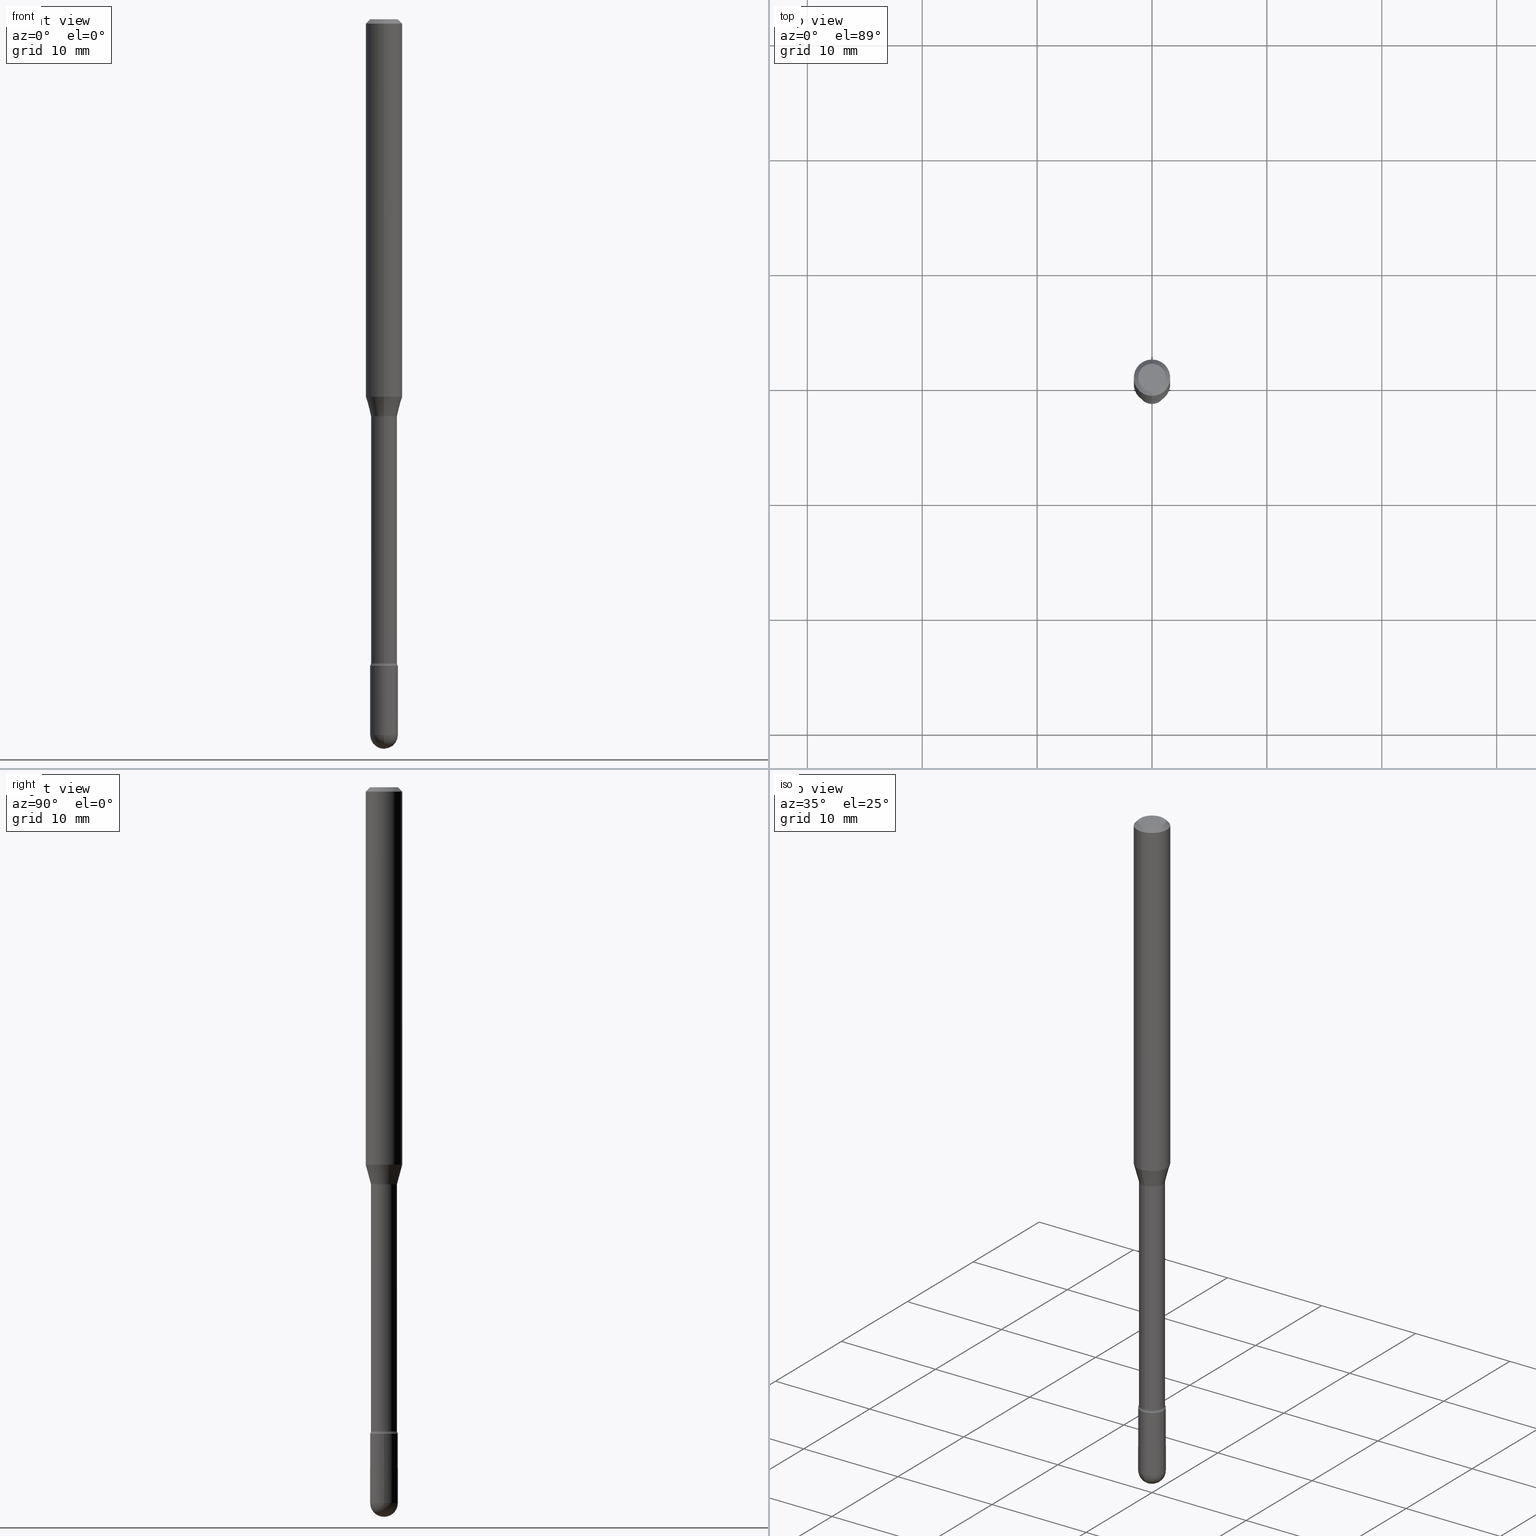
[diagram: canonical four-view strip — front | top / right | iso, engineering-drawing reading convention]
A machine part, canonical four-view strip (front | top / right | iso — engineering-drawing reading convention). The complete STEP part file that produces these views, byte-faithful:
ISO-10303-21;
HEADER;
FILE_DESCRIPTION (( 'STEP AP203' ),
    '1' );
FILE_NAME ('04588.STEP',
    '2024-04-09T22:11:20',
    ( '' ),
    ( '' ),
    'SwSTEP 2.0',
    'SolidWorks 2023',
    '' );
FILE_SCHEMA (( 'CONFIG_CONTROL_DESIGN' ));
ENDSEC;

DATA;
#1 = DIRECTION ( 'NONE',  ( 6.982962677686265922E-15, 1.000000000000000000, -5.751258934030028949E-15 ) ) ;
#2 = DIRECTION ( 'NONE',  ( 6.982962677686265922E-15, 1.000000000000000000, -3.483106191921935554E-15 ) ) ;
#3 = AXIS2_PLACEMENT_3D ( 'NONE', #271, #359, #448 ) ;
#4 = ADVANCED_FACE ( 'NONE', ( #294 ), #468, .T. ) ;
#5 = DIRECTION ( 'NONE',  ( -2.445461781788735863E-29, 3.491491398178595118E-15, 1.000000000000000000 ) ) ;
#6 = PRODUCT_RELATED_PRODUCT_CATEGORY ( 'detail', '', ( #372 ) ) ;
#7 = DIRECTION ( 'NONE',  ( -6.982962677686265922E-15, -1.000000000000000000, 3.491491398178595118E-15 ) ) ;
#8 = ORIENTED_EDGE ( 'NONE', *, *, #73, .F. ) ;
#9 = ORIENTED_EDGE ( 'NONE', *, *, #405, .F. ) ;
#10 = COORDINATED_UNIVERSAL_TIME_OFFSET ( 5, 0, .BEHIND. ) ;
#11 = DIRECTION ( 'NONE',  ( -2.445461781788736143E-29, 3.491491398178595118E-15, 1.000000000000000000 ) ) ;
#12 = CARTESIAN_POINT ( 'NONE',  ( 3.330657290502586691E-29, -4.755323254966016992E-15, -1.361974787463811287 ) ) ;
#13 = VERTEX_POINT ( 'NONE', #193 ) ;
#14 = AXIS2_PLACEMENT_3D ( 'NONE', #176, #435, #39 ) ;
#15 = APPROVAL_DATE_TIME ( #262, #351 ) ;
#16 = LOCAL_TIME ( 18, 11, 20.00000000000000000, #537 ) ;
#17 = EDGE_CURVE ( 'NONE', #306, #251, #174, .T. ) ;
#18 = DIRECTION ( 'NONE',  ( 2.445461781788735863E-29, -3.491491398178595118E-15, -1.000000000000000000 ) ) ;
#19 = DIRECTION ( 'NONE',  ( -2.445461781788735582E-29, 3.491491398178595118E-15, 1.000000000000000000 ) ) ;
#20 = CARTESIAN_POINT ( 'NONE',  ( 0.000000000000000000, 0.000000000000000000, 0.000000000000000000 ) ) ;
#21 = CARTESIAN_POINT ( 'NONE',  ( -3.316907271900436219E-16, -0.04750000000000775130, -2.214999999999999858 ) ) ;
#22 = FACE_OUTER_BOUND ( 'NONE', #491, .T. ) ;
#23 = DIRECTION ( 'NONE',  ( 1.000000000000000000, -6.982962677686266711E-15, 4.876176775795934672E-29 ) ) ;
#24 = ORIENTED_EDGE ( 'NONE', *, *, #188, .T. ) ;
#25 = EDGE_CURVE ( 'NONE', #30, #319, #225, .T. ) ;
#26 = VECTOR ( 'NONE', #120, 39.37007874015748143 ) ;
#27 = CC_DESIGN_SECURITY_CLASSIFICATION ( #219, ( #114 ) ) ;
#28 = CARTESIAN_POINT ( 'NONE',  ( 5.416713405700078055E-29, -7.733631165537568465E-15, -2.215000000000000302 ) ) ;
#29 = DIRECTION ( 'NONE',  ( -2.445461781788735863E-29, 3.491491398178595118E-15, 1.000000000000000000 ) ) ;
#30 = VERTEX_POINT ( 'NONE', #64 ) ;
#31 = CARTESIAN_POINT ( 'NONE',  ( 3.162918434258458957E-29, -4.515835245757259630E-15, -1.293382893084895846 ) ) ;
#32 = AXIS2_PLACEMENT_3D ( 'NONE', #332, #498, #119 ) ;
#33 = AXIS2_PLACEMENT_3D ( 'NONE', #312, #485, #49 ) ;
#34 = DIRECTION ( 'NONE',  ( -6.982962677686265922E-15, -1.000000000000000000, 6.118360568117040476E-15 ) ) ;
#35 = VERTEX_POINT ( 'NONE', #234 ) ;
#36 = ORGANIZATION ( 'UNSPECIFIED', 'UNSPECIFIED', '' ) ;
#37 = EDGE_CURVE ( 'NONE', #236, #245, #309, .T. ) ;
#38 = CARTESIAN_POINT ( 'NONE',  ( 2.023501778236297526E-45, -2.889136915043461319E-31, -8.274655425311145502E-17 ) ) ;
#39 = DIRECTION ( 'NONE',  ( 1.000000000000000000, -6.982962677686265922E-15, 4.876176775795935793E-29 ) ) ;
#40 = DIRECTION ( 'NONE',  ( -6.982962677686265922E-15, -1.000000000000000000, 3.491491398178596301E-15 ) ) ;
#41 = PLANE ( 'NONE',  #14 ) ;
#42 = APPROVAL_STATUS ( 'not_yet_approved' ) ;
#43 = ADVANCED_FACE ( 'NONE', ( #162 ), #336, .F. ) ;
#44 = ORIENTED_EDGE ( 'NONE', *, *, #52, .F. ) ;
#45 = CLOSED_SHELL ( 'NONE', ( #4, #285, #140, #439, #100 ) ) ;
#46 = AXIS2_PLACEMENT_3D ( 'NONE', #148, #531, #367 ) ;
#47 = FACE_OUTER_BOUND ( 'NONE', #243, .T. ) ;
#48 = AXIS2_PLACEMENT_3D ( 'NONE', #340, #170, #471 ) ;
#49 = DIRECTION ( 'NONE',  ( -6.982962677686265922E-15, -1.000000000000000000, 6.118360568117040476E-15 ) ) ;
#50 = FACE_OUTER_BOUND ( 'NONE', #386, .T. ) ;
#51 = FACE_OUTER_BOUND ( 'NONE', #328, .T. ) ;
#52 = EDGE_CURVE ( 'NONE', #89, #117, #377, .T. ) ;
#53 = AXIS2_PLACEMENT_3D ( 'NONE', #38, #446, #353 ) ;
#54 = CC_DESIGN_APPROVAL ( #351, ( #114 ) ) ;
#55 = PERSON_AND_ORGANIZATION_ROLE ( 'creator' ) ;
#56 = FACE_OUTER_BOUND ( 'NONE', #112, .T. ) ;
#57 = DIRECTION ( 'NONE',  ( 1.000000000000000000, -6.982962677686266711E-15, 4.876176775795934672E-29 ) ) ;
#58 = EDGE_LOOP ( 'NONE', ( #361, #539 ) ) ;
#59 = PERSON_AND_ORGANIZATION ( #133, #36 ) ;
#60 = FACE_OUTER_BOUND ( 'NONE', #198, .T. ) ;
#61 = DIRECTION ( 'NONE',  ( 1.000000000000000000, -7.105427357601001070E-15, 4.926315631733411836E-29 ) ) ;
#62 = EDGE_CURVE ( 'NONE', #464, #89, #183, .T. ) ;
#63 = FACE_OUTER_BOUND ( 'NONE', #190, .T. ) ;
#64 = CARTESIAN_POINT ( 'NONE',  ( -3.153583638081051864E-16, -0.04516111260566872676, -1.358092501787273143 ) ) ;
#65 = ORIENTED_EDGE ( 'NONE', *, *, #37, .T. ) ;
#66 = ORIENTED_EDGE ( 'NONE', *, *, #257, .T. ) ;
#67 = VECTOR ( 'NONE', #11, 39.37007874015748143 ) ;
#68 = AXIS2_PLACEMENT_3D ( 'NONE', #432, #129, #298 ) ;
#69 = CARTESIAN_POINT ( 'NONE',  ( 5.997512247169047773E-29, -8.562857983512815004E-15, -2.452500000000000124 ) ) ;
#70 = CYLINDRICAL_SURFACE ( 'NONE', #300, 0.04465000000000004382 ) ;
#71 = DIRECTION ( 'NONE',  ( -6.982962677686265922E-15, -1.000000000000000000, 6.118360568117050731E-15 ) ) ;
#72 = CARTESIAN_POINT ( 'NONE',  ( 3.668192672683123885E-31, -5.237237097267922061E-17, -0.01500000000000008271 ) ) ;
#73 = EDGE_CURVE ( 'NONE', #108, #236, #82, .T. ) ;
#74 = CARTESIAN_POINT ( 'NONE',  ( 0.000000000000000000, 0.000000000000000000, 0.000000000000000000 ) ) ;
#75 = AXIS2_PLACEMENT_3D ( 'NONE', #12, #374, #71 ) ;
#76 = CIRCLE ( 'NONE', #481, 0.04749999999999998668 ) ;
#77 = AXIS2_PLACEMENT_3D ( 'NONE', #250, #437, #40 ) ;
#78 =( NAMED_UNIT ( * ) PLANE_ANGLE_UNIT ( ) SI_UNIT ( $, .RADIAN. ) );
#79 = APPLICATION_PROTOCOL_DEFINITION ( 'international standard', 'config_control_design', 1994, #238 ) ;
#80 = CARTESIAN_POINT ( 'NONE',  ( 0.000000000000000000, 0.000000000000000000, 0.000000000000000000 ) ) ;
#81 = EDGE_CURVE ( 'NONE', #350, #154, #396, .T. ) ;
#82 = LINE ( 'NONE', #436, #316 ) ;
#83 = DIRECTION ( 'NONE',  ( -2.445461781788735863E-29, 3.491491398178595118E-15, 1.000000000000000000 ) ) ;
#84 = ORIENTED_EDGE ( 'NONE', *, *, #495, .T. ) ;
#85 = CIRCLE ( 'NONE', #356, 0.06250000000000000000 ) ;
#86 = AXIS2_PLACEMENT_3D ( 'NONE', #181, #99, #102 ) ;
#87 = CARTESIAN_POINT ( 'NONE',  ( 3.330666857553381436E-29, -4.755309554404755969E-15, -1.361974787463811287 ) ) ;
#88 = APPROVAL_DATE_TIME ( #469, #222 ) ;
#89 = VERTEX_POINT ( 'NONE', #466 ) ;
#90 = EDGE_CURVE ( 'NONE', #338, #306, #383, .T. ) ;
#91 = ORIENTED_EDGE ( 'NONE', *, *, #344, .F. ) ;
#92 = ORIENTED_EDGE ( 'NONE', *, *, #81, .F. ) ;
#93 = ORIENTED_EDGE ( 'NONE', *, *, #470, .F. ) ;
#94 = FACE_OUTER_BOUND ( 'NONE', #308, .T. ) ;
#95 = ORIENTED_EDGE ( 'NONE', *, *, #132, .F. ) ;
#96 = VECTOR ( 'NONE', #529, 39.37007874015748143 ) ;
#97 = DIRECTION ( 'NONE',  ( 1.000000000000000000, -6.982962677686265922E-15, 4.883557194083112340E-29 ) ) ;
#98 = CIRCLE ( 'NONE', #237, 0.04465000000000007851 ) ;
#99 = DIRECTION ( 'NONE',  ( -2.445468806185136597E-29, 3.491481338843145583E-15, 1.000000000000000000 ) ) ;
#100 = ADVANCED_FACE ( 'NONE', ( #60 ), #408, .T. ) ;
#101 = CARTESIAN_POINT ( 'NONE',  ( -4.364351673553916201E-16, -0.06250000000000000000, 6.962916112774082088E-16 ) ) ;
#102 = DIRECTION ( 'NONE',  ( 1.000000000000000000, -6.982962677686280910E-15, 0.000000000000000000 ) ) ;
#103 = CIRCLE ( 'NONE', #226, 0.01500000000000001853 ) ;
#104 = EDGE_LOOP ( 'NONE', ( #150, #369, #501, #477 ) ) ;
#105 = CARTESIAN_POINT ( 'NONE',  ( 4.238387418809543025E-16, 0.05964999999999239660, -2.206203551853163081 ) ) ;
#106 = EDGE_LOOP ( 'NONE', ( #430, #249, #516, #280 ) ) ;
#107 = CARTESIAN_POINT ( 'NONE',  ( -1.169113584055446105E-44, 1.669184350826100908E-30, 4.780733988912460139E-16 ) ) ;
#108 = VERTEX_POINT ( 'NONE', #290 ) ;
#109 = DIRECTION ( 'NONE',  ( 1.000000000000000000, -6.982962677686280910E-15, 0.000000000000000000 ) ) ;
#110 = SPHERICAL_SURFACE ( 'NONE', #343, 0.04749999999999998668 ) ;
#111 = CARTESIAN_POINT ( 'NONE',  ( 3.668192672683123885E-31, -5.237237097267922061E-17, -0.01500000000000008271 ) ) ;
#112 = EDGE_LOOP ( 'NONE', ( #93, #240, #515, #523 ) ) ;
#113 = CIRCLE ( 'NONE', #472, 0.01500000000000001853 ) ;
#114 = PRODUCT_DEFINITION_FORMATION_WITH_SPECIFIED_SOURCE ( 'ANY', '', #372, .NOT_KNOWN. ) ;
#115 = EDGE_CURVE ( 'NONE', #464, #134, #381, .T. ) ;
#116 = DIRECTION ( 'NONE',  ( -6.982962677686265922E-15, -1.000000000000000000, 3.491491398178595118E-15 ) ) ;
#117 = VERTEX_POINT ( 'NONE', #431 ) ;
#118 = LINE ( 'NONE', #385, #167 ) ;
#119 = DIRECTION ( 'NONE',  ( 6.982962677686265922E-15, 1.000000000000000000, -3.491491398178595118E-15 ) ) ;
#120 = DIRECTION ( 'NONE',  ( -2.445468806185136877E-29, 3.491481338843145188E-15, 1.000000000000000000 ) ) ;
#121 = CARTESIAN_POINT ( 'NONE',  ( 3.321163309254627644E-29, -4.741768287921113327E-15, -1.358092501787273365 ) ) ;
#122 = DIRECTION ( 'NONE',  ( -2.445468806185136597E-29, 3.491481338843145583E-15, 1.000000000000000000 ) ) ;
#123 = DIRECTION ( 'NONE',  ( -2.445468806185136597E-29, 3.491481338843145583E-15, 1.000000000000000000 ) ) ;
#124 = VECTOR ( 'NONE', #315, 39.37007874015748854 ) ;
#125 = MANIFOLD_SOLID_BREP ( 'Body-Move/Copy2[2]', #504 ) ;
#126 =( LENGTH_UNIT ( ) NAMED_UNIT ( * ) SI_UNIT ( $, .METRE. ) );
#127 = EDGE_CURVE ( 'NONE', #13, #214, #85, .T. ) ;
#128 = FACE_OUTER_BOUND ( 'NONE', #536, .T. ) ;
#129 = DIRECTION ( 'NONE',  ( -2.445461781788735863E-29, 3.491491398178595118E-15, 1.000000000000000000 ) ) ;
#130 = CIRCLE ( 'NONE', #287, 0.06250000000000000000 ) ;
#131 = DIRECTION ( 'NONE',  ( -2.445461781788735863E-29, 3.491491398178595118E-15, 1.000000000000000000 ) ) ;
#132 = EDGE_CURVE ( 'NONE', #108, #479, #317, .T. ) ;
#133 = PERSON ( 'UNSPECIFIED', 'UNSPECIFIED', 'UNSPECIFIED', ('UNSPECIFIED'), ('UNSPECIFIED'), ('UNSPECIFIED') ) ;
#134 = VERTEX_POINT ( 'NONE', #173 ) ;
#135 = DIRECTION ( 'NONE',  ( -6.982962677686266711E-15, -1.000000000000000000, 6.049115790211160649E-15 ) ) ;
#136 = CARTESIAN_POINT ( 'NONE',  ( 5.997512247169047773E-29, -8.562857983512815004E-15, -2.452500000000000124 ) ) ;
#137 = CIRCLE ( 'NONE', #86, 0.04750000000000000749 ) ;
#138 = CARTESIAN_POINT ( 'NONE',  ( 3.824891074290559066E-16, 0.04516111260565924823, -1.358092501787273587 ) ) ;
#139 = APPROVAL_PERSON_ORGANIZATION ( #207, #222, #168 ) ;
#140 = ADVANCED_FACE ( 'NONE', ( #258 ), #41, .T. ) ;
#141 = DIRECTION ( 'NONE',  ( -6.982962677686265922E-15, -1.000000000000000000, 3.483106191921935554E-15 ) ) ;
#142 = PERSON_AND_ORGANIZATION ( #133, #36 ) ;
#143 = CC_DESIGN_PERSON_AND_ORGANIZATION_ASSIGNMENT ( #177, #313, ( #219 ) ) ;
#144 = CARTESIAN_POINT ( 'NONE',  ( -3.117892835586584493E-16, -0.04465000000000475533, -1.361974787463811065 ) ) ;
#145 = DATE_AND_TIME ( #442, #379 ) ;
#146 = DIRECTION ( 'NONE',  ( -2.445468806185136597E-29, 3.491481338843145583E-15, 1.000000000000000000 ) ) ;
#147 = EDGE_CURVE ( 'NONE', #30, #251, #103, .T. ) ;
#148 = CARTESIAN_POINT ( 'NONE',  ( 5.997512247169047773E-29, -8.562857983512815004E-15, -2.452500000000000124 ) ) ;
#149 = AXIS2_PLACEMENT_3D ( 'NONE', #348, #5, #566 ) ;
#150 = ORIENTED_EDGE ( 'NONE', *, *, #257, .F. ) ;
#151 = DIRECTION ( 'NONE',  ( 1.000000000000000000, -6.982962677686280910E-15, 0.000000000000000000 ) ) ;
#152 = FACE_OUTER_BOUND ( 'NONE', #104, .T. ) ;
#153 = CARTESIAN_POINT ( 'NONE',  ( 5.416697846662049906E-29, -7.733653446965590441E-15, -2.215000000000000302 ) ) ;
#154 = VERTEX_POINT ( 'NONE', #21 ) ;
#155 = DIRECTION ( 'NONE',  ( -4.851104656540964275E-15, -0.7071067811865500152, -0.7071067811865450192 ) ) ;
#156 = ORIENTED_EDGE ( 'NONE', *, *, #465, .F. ) ;
#157 = ORIENTED_EDGE ( 'NONE', *, *, #17, .T. ) ;
#158 = AXIS2_PLACEMENT_3D ( 'NONE', #136, #307, #1 ) ;
#159 = AXIS2_PLACEMENT_3D ( 'NONE', #28, #123, #506 ) ;
#160 = CIRCLE ( 'NONE', #68, 0.04749999999999999362 ) ;
#161 = EDGE_CURVE ( 'NONE', #30, #214, #118, .T. ) ;
#162 = FACE_OUTER_BOUND ( 'NONE', #58, .T. ) ;
#163 = FACE_OUTER_BOUND ( 'NONE', #552, .T. ) ;
#164 = DIRECTION ( 'NONE',  ( -2.445461781788735863E-29, 3.491491398178595118E-15, 1.000000000000000000 ) ) ;
#165 = EDGE_CURVE ( 'NONE', #13, #236, #273, .T. ) ;
#166 = DIRECTION ( 'NONE',  ( -2.445461781788736143E-29, 3.491491398178595118E-15, 1.000000000000000000 ) ) ;
#167 = VECTOR ( 'NONE', #223, 39.37007874015748854 ) ;
#168 = APPROVAL_ROLE ( '' ) ;
#169 = ORIENTED_EDGE ( 'NONE', *, *, #204, .T. ) ;
#170 = DIRECTION ( 'NONE',  ( -2.445468806185136597E-29, 3.491481338843145583E-15, 1.000000000000000000 ) ) ;
#171 = DIRECTION ( 'NONE',  ( -6.982962677686265922E-15, -1.000000000000000000, 4.370956789862821150E-15 ) ) ;
#172 = EDGE_CURVE ( 'NONE', #117, #276, #137, .T. ) ;
#173 = CARTESIAN_POINT ( 'NONE',  ( -0.04749999999999999362, -7.810736775039144241E-15, -2.215000000000000302 ) ) ;
#174 = CIRCLE ( 'NONE', #75, 0.04465000000000000219 ) ;
#175 = CIRCLE ( 'NONE', #33, 0.04465000000000007851 ) ;
#176 = CARTESIAN_POINT ( 'NONE',  ( 5.416713405700078055E-29, -7.733631165537568465E-15, -2.215000000000000302 ) ) ;
#177 = PERSON_AND_ORGANIZATION ( #133, #36 ) ;
#178 = ORIENTED_EDGE ( 'NONE', *, *, #81, .T. ) ;
#179 = SPHERICAL_SURFACE ( 'NONE', #158, 0.04749999999999998668 ) ;
#180 = VERTEX_POINT ( 'NONE', #275 ) ;
#181 = CARTESIAN_POINT ( 'NONE',  ( 5.997512247169047773E-29, -8.562857983512815004E-15, -2.452500000000000124 ) ) ;
#182 = DIRECTION ( 'NONE',  ( -2.445461781788735863E-29, 3.491491398178595118E-15, 1.000000000000000000 ) ) ;
#183 = CIRCLE ( 'NONE', #216, 0.04750000000000000749 ) ;
#184 = VECTOR ( 'NONE', #155, 39.37007874015748143 ) ;
#185 = DIRECTION ( 'NONE',  ( 6.982962677686265133E-15, 1.000000000000000000, 0.000000000000000000 ) ) ;
#186 = DIRECTION ( 'NONE',  ( 2.445461781788735863E-29, -3.491491398178595118E-15, -1.000000000000000000 ) ) ;
#187 = APPROVAL_DATE_TIME ( #145, #497 ) ;
#188 = EDGE_CURVE ( 'NONE', #214, #245, #478, .T. ) ;
#189 = CARTESIAN_POINT ( 'NONE',  ( -4.287811248607203282E-16, -0.06250000000000005551, -0.01499999999999986587 ) ) ;
#190 = EDGE_LOOP ( 'NONE', ( #9, #429, #460, #565 ) ) ;
#191 = ORIENTED_EDGE ( 'NONE', *, *, #547, .T. ) ;
#192 = CARTESIAN_POINT ( 'NONE',  ( 3.330657290502586691E-29, -4.755323254966016992E-15, -1.361974787463811287 ) ) ;
#193 = CARTESIAN_POINT ( 'NONE',  ( 4.440892098500943678E-16, 0.06249999999999551747, -1.293382893084896068 ) ) ;
#194 = CIRCLE ( 'NONE', #389, 0.04749999999999999362 ) ;
#195 = ORIENTED_EDGE ( 'NONE', *, *, #366, .F. ) ;
#196 = CC_DESIGN_APPROVAL ( #222, ( #519 ) ) ;
#197 = DIRECTION ( 'NONE',  ( -2.445461781788735863E-29, 3.491491398178595118E-15, 1.000000000000000000 ) ) ;
#198 = EDGE_LOOP ( 'NONE', ( #358, #542, #421, #291, #418 ) ) ;
#199 = CARTESIAN_POINT ( 'NONE',  ( 0.04750000000000000749, -3.316907271900977082E-16, 2.316183968503069432E-30 ) ) ;
#200 = EDGE_CURVE ( 'NONE', #245, #236, #505, .T. ) ;
#201 = FACE_OUTER_BOUND ( 'NONE', #411, .T. ) ;
#202 = LOCAL_TIME ( 18, 11, 20.00000000000000000, #475 ) ;
#203 = CYLINDRICAL_SURFACE ( 'NONE', #513, 0.06250000000000000000 ) ;
#204 = EDGE_CURVE ( 'NONE', #214, #13, #130, .T. ) ;
#205 = DIRECTION ( 'NONE',  ( 0.000000000000000000, 0.000000000000000000, 1.000000000000000000 ) ) ;
#206 = ORIENTED_EDGE ( 'NONE', *, *, #366, .T. ) ;
#207 = PERSON_AND_ORGANIZATION ( #133, #36 ) ;
#208 = ORIENTED_EDGE ( 'NONE', *, *, #172, .T. ) ;
#209 = AXIS2_PLACEMENT_3D ( 'NONE', #20, #494, #23 ) ;
#210 = FACE_OUTER_BOUND ( 'NONE', #260, .T. ) ;
#211 = ORIENTED_EDGE ( 'NONE', *, *, #470, .T. ) ;
#212 = LENGTH_MEASURE_WITH_UNIT ( LENGTH_MEASURE( 0.02539999999999999897 ), #126 );
#213 = COORDINATED_UNIVERSAL_TIME_OFFSET ( 5, 0, .BEHIND. ) ;
#214 = VERTEX_POINT ( 'NONE', #224 ) ;
#215 = FACE_OUTER_BOUND ( 'NONE', #106, .T. ) ;
#216 = AXIS2_PLACEMENT_3D ( 'NONE', #69, #146, #151 ) ;
#217 = AXIS2_PLACEMENT_3D ( 'NONE', #72, #18, #541 ) ;
#218 = CARTESIAN_POINT ( 'NONE',  ( 5.416697846662049906E-29, -7.733653446965590441E-15, -2.215000000000000302 ) ) ;
#219 = SECURITY_CLASSIFICATION ( '', '', #559 ) ;
#220 = ORIENTED_EDGE ( 'NONE', *, *, #90, .T. ) ;
#221 = DIRECTION ( 'NONE',  ( -2.445461781788735863E-29, 3.491491398178595118E-15, 1.000000000000000000 ) ) ;
#222 = APPROVAL ( #384, 'UNSPECIFIED' ) ;
#223 = DIRECTION ( 'NONE',  ( -1.807323732225322645E-15, -0.2588190451025170757, 0.9659258262890693114 ) ) ;
#224 = CARTESIAN_POINT ( 'NONE',  ( -4.364351673553597698E-16, -0.06250000000000448253, -1.293382893084895402 ) ) ;
#225 = CIRCLE ( 'NONE', #299, 0.04516111260566398750 ) ;
#226 = AXIS2_PLACEMENT_3D ( 'NONE', #341, #509, #241 ) ;
#227 = CARTESIAN_POINT ( 'NONE',  ( 3.668192672683123885E-31, -5.237237097267922061E-17, -0.01500000000000008271 ) ) ;
#228 = ADVANCED_FACE ( 'NONE', ( #47 ), #544, .T. ) ;
#229 = DIRECTION ( 'NONE',  ( -6.982962677686265922E-15, -1.000000000000000000, 3.491491398178596301E-15 ) ) ;
#230 = EDGE_LOOP ( 'NONE', ( #253, #375, #24, #254 ) ) ;
#231 = DATE_AND_TIME ( #370, #16 ) ;
#232 = DIRECTION ( 'NONE',  ( 7.105427357601001859E-15, 1.000000000000000000, 0.000000000000000000 ) ) ;
#233 = DIRECTION ( 'NONE',  ( -6.982962677686266711E-15, -1.000000000000000000, 6.049115790211160649E-15 ) ) ;
#234 = CARTESIAN_POINT ( 'NONE',  ( 6.115703035399643170E-29, -8.725794810959889951E-15, -2.500000000000000000 ) ) ;
#235 = AXIS2_PLACEMENT_3D ( 'NONE', #493, #330, #116 ) ;
#236 = VERTEX_POINT ( 'NONE', #451 ) ;
#237 = AXIS2_PLACEMENT_3D ( 'NONE', #256, #164, #34 ) ;
#238 = APPLICATION_CONTEXT ( 'configuration controlled 3d designs of mechanical parts and assemblies' ) ;
#239 = ADVANCED_FACE ( 'NONE', ( #94 ), #416, .T. ) ;
#240 = ORIENTED_EDGE ( 'NONE', *, *, #25, .F. ) ;
#241 = DIRECTION ( 'NONE',  ( -6.982962677686267499E-15, -1.000000000000000000, 0.000000000000000000 ) ) ;
#242 = CARTESIAN_POINT ( 'NONE',  ( -3.117892835586383826E-16, -0.04465000000000778069, -2.206203551853162637 ) ) ;
#243 = EDGE_LOOP ( 'NONE', ( #264, #66, #265, #342 ) ) ;
#244 = DIRECTION ( 'NONE',  ( -6.982962677686266711E-15, -1.000000000000000000, 5.751258934030028949E-15 ) ) ;
#245 = VERTEX_POINT ( 'NONE', #272 ) ;
#246 = AXIS2_PLACEMENT_3D ( 'NONE', #293, #419, #7 ) ;
#247 = ADVANCED_FACE ( 'NONE', ( #51 ), #397, .F. ) ;
#248 = CARTESIAN_POINT ( 'NONE',  ( 5.997512247169047773E-29, -8.562857983512815004E-15, -2.452500000000000124 ) ) ;
#249 = ORIENTED_EDGE ( 'NONE', *, *, #465, .T. ) ;
#250 = CARTESIAN_POINT ( 'NONE',  ( -1.169113584055446105E-44, 1.669184350826100908E-30, 4.780733988912460139E-16 ) ) ;
#251 = VERTEX_POINT ( 'NONE', #144 ) ;
#252 = CYLINDRICAL_SURFACE ( 'NONE', #77, 0.04465000000000004382 ) ;
#253 = ORIENTED_EDGE ( 'NONE', *, *, #165, .F. ) ;
#254 = ORIENTED_EDGE ( 'NONE', *, *, #37, .F. ) ;
#255 = CIRCLE ( 'NONE', #274, 0.04465000000000000219 ) ;
#256 = CARTESIAN_POINT ( 'NONE',  ( 5.395186468903473555E-29, -7.702940723926383539E-15, -2.206203551853163081 ) ) ;
#257 = EDGE_CURVE ( 'NONE', #319, #13, #563, .T. ) ;
#258 = FACE_OUTER_BOUND ( 'NONE', #528, .T. ) ;
#259 = PERSON_AND_ORGANIZATION ( #133, #36 ) ;
#260 = EDGE_LOOP ( 'NONE', ( #364, #220, #281, #195 ) ) ;
#261 = ORIENTED_EDGE ( 'NONE', *, *, #323, .T. ) ;
#262 = DATE_AND_TIME ( #526, #507 ) ;
#263 = ORIENTED_EDGE ( 'NONE', *, *, #172, .F. ) ;
#264 = ORIENTED_EDGE ( 'NONE', *, *, #25, .T. ) ;
#265 = ORIENTED_EDGE ( 'NONE', *, *, #204, .F. ) ;
#266 = DIRECTION ( 'NONE',  ( -2.445461781788736143E-29, 3.491491398178595118E-15, 1.000000000000000000 ) ) ;
#267 = EDGE_CURVE ( 'NONE', #319, #30, #463, .T. ) ;
#268 = CONICAL_SURFACE ( 'NONE', #217, 0.06250000000000000000, 0.7853981633974483900 ) ;
#269 = APPROVAL_PERSON_ORGANIZATION ( #530, #497, #514 ) ;
#270 = ORIENTED_EDGE ( 'NONE', *, *, #455, .T. ) ;
#271 = CARTESIAN_POINT ( 'NONE',  ( 5.416713405700078055E-29, -7.733631165537568465E-15, -2.215000000000000302 ) ) ;
#272 = CARTESIAN_POINT ( 'NONE',  ( -4.364351673553912750E-16, -0.06250000000000005551, -0.01499999999999986587 ) ) ;
#273 = LINE ( 'NONE', #487, #388 ) ;
#274 = AXIS2_PLACEMENT_3D ( 'NONE', #192, #321, #371 ) ;
#275 = CARTESIAN_POINT ( 'NONE',  ( 0.04749999999999999362, -8.065321892727665188E-15, -2.215000000000000302 ) ) ;
#276 = VERTEX_POINT ( 'NONE', #352 ) ;
#277 = DATE_TIME_ROLE ( 'classification_date' ) ;
#278 = LINE ( 'NONE', #189, #184 ) ;
#279 = DIRECTION ( 'NONE',  ( -2.445468806185136597E-29, 3.491481338843145583E-15, 1.000000000000000000 ) ) ;
#280 = ORIENTED_EDGE ( 'NONE', *, *, #495, .F. ) ;
#281 = ORIENTED_EDGE ( 'NONE', *, *, #413, .F. ) ;
#282 = DIRECTION ( 'NONE',  ( -2.445461781788735863E-29, 3.491491398178595118E-15, 1.000000000000000000 ) ) ;
#283 = DIMENSIONAL_EXPONENTS ( 1.000000000000000000, 0.000000000000000000, 0.000000000000000000, 0.000000000000000000, 0.000000000000000000, 0.000000000000000000, 0.000000000000000000 ) ;
#284 = ORIENTED_EDGE ( 'NONE', *, *, #90, .F. ) ;
#285 = ADVANCED_FACE ( 'NONE', ( #215 ), #179, .T. ) ;
#286 = CARTESIAN_POINT ( 'NONE',  ( 3.321163309254627644E-29, -4.741768287921113327E-15, -1.358092501787273365 ) ) ;
#287 = AXIS2_PLACEMENT_3D ( 'NONE', #409, #304, #354 ) ;
#288 = AXIS2_PLACEMENT_3D ( 'NONE', #74, #205, #428 ) ;
#289 = PLANE ( 'NONE',  #452 ) ;
#290 = CARTESIAN_POINT ( 'NONE',  ( 3.840629472727447874E-16, 0.04749999999999999362, -2.485923956665947374E-16 ) ) ;
#291 = ORIENTED_EDGE ( 'NONE', *, *, #427, .T. ) ;
#292 = PRODUCT_DEFINITION_SHAPE ( 'NONE', 'NONE',  #519 ) ;
#293 = CARTESIAN_POINT ( 'NONE',  ( 5.395201966151762718E-29, -7.702918530984785172E-15, -2.206203551853163081 ) ) ;
#294 = FACE_OUTER_BOUND ( 'NONE', #557, .T. ) ;
#295 = DIRECTION ( 'NONE',  ( -6.982962677686265922E-15, -1.000000000000000000, 3.483106191921935554E-15 ) ) ;
#296 = CALENDAR_DATE ( 2024, 9, 4 ) ;
#297 = DIRECTION ( 'NONE',  ( -2.445468806185136877E-29, 3.491481338843145188E-15, 1.000000000000000000 ) ) ;
#298 = DIRECTION ( 'NONE',  ( -6.982962677686266711E-15, -1.000000000000000000, 3.491491398178595512E-15 ) ) ;
#299 = AXIS2_PLACEMENT_3D ( 'NONE', #121, #368, #322 ) ;
#300 = AXIS2_PLACEMENT_3D ( 'NONE', #410, #534, #229 ) ;
#301 = CIRCLE ( 'NONE', #159, 0.04749999999999999362 ) ;
#302 = PERSON_AND_ORGANIZATION ( #133, #36 ) ;
#303 = ORIENTED_EDGE ( 'NONE', *, *, #527, .F. ) ;
#304 = DIRECTION ( 'NONE',  ( -2.445461781788735863E-29, 3.491491398178595118E-15, 1.000000000000000000 ) ) ;
#305 = MANIFOLD_SOLID_BREP ( 'Body-Move/Copy2[1]', #45 ) ;
#306 = VERTEX_POINT ( 'NONE', #404 ) ;
#307 = DIRECTION ( 'NONE',  ( -1.000000000000000000, 6.982962677686265922E-15, -4.883557194083112340E-29 ) ) ;
#308 = EDGE_LOOP ( 'NONE', ( #518, #95, #561, #65 ) ) ;
#309 = CIRCLE ( 'NONE', #488, 0.06250000000000000000 ) ;
#310 = CONICAL_SURFACE ( 'NONE', #335, 0.04516111260566398750, 0.2617993877991491303 ) ;
#311 = DIRECTION ( 'NONE',  ( -6.982962677686267499E-15, -1.000000000000000000, 0.000000000000000000 ) ) ;
#312 = CARTESIAN_POINT ( 'NONE',  ( 5.395186468903473555E-29, -7.702940723926383539E-15, -2.206203551853163081 ) ) ;
#313 = PERSON_AND_ORGANIZATION_ROLE ( 'classification_officer' ) ;
#314 = APPLICATION_CONTEXT ( 'configuration controlled 3d designs of mechanical parts and assemblies' ) ;
#315 = DIRECTION ( 'NONE',  ( 1.839019923739592427E-15, 0.2588190451025238481, 0.9659258262890675351 ) ) ;
#316 = VECTOR ( 'NONE', #511, 39.37007874015748143 ) ;
#317 = CIRCLE ( 'NONE', #53, 0.04749999999999999362 ) ;
#318 = LINE ( 'NONE', #420, #67 ) ;
#319 = VERTEX_POINT ( 'NONE', #138 ) ;
#320 = APPROVAL_STATUS ( 'not_yet_approved' ) ;
#321 = DIRECTION ( 'NONE',  ( -2.445461781788735863E-29, 3.491491398178595118E-15, 1.000000000000000000 ) ) ;
#322 = DIRECTION ( 'NONE',  ( -6.982962677686266711E-15, -1.000000000000000000, 6.049115790211160649E-15 ) ) ;
#323 = EDGE_CURVE ( 'NONE', #35, #276, #76, .T. ) ;
#324 = DIRECTION ( 'NONE',  ( -2.445461781788735863E-29, 3.491491398178595118E-15, 1.000000000000000000 ) ) ;
#325 = CC_DESIGN_PERSON_AND_ORGANIZATION_ASSIGNMENT ( #59, #55, ( #114 ) ) ;
#326 = FACE_OUTER_BOUND ( 'NONE', #346, .T. ) ;
#327 = CIRCLE ( 'NONE', #3, 0.04749999999999999362 ) ;
#328 = EDGE_LOOP ( 'NONE', ( #535, #555, #178, #91 ) ) ;
#329 = EDGE_CURVE ( 'NONE', #180, #134, #327, .T. ) ;
#330 = DIRECTION ( 'NONE',  ( -2.445461781788735863E-29, 3.491491398178595118E-15, 1.000000000000000000 ) ) ;
#331 = DIRECTION ( 'NONE',  ( -6.982962677686265922E-15, -1.000000000000000000, 3.491491398178594723E-15 ) ) ;
#332 = CARTESIAN_POINT ( 'NONE',  ( 3.316907271900976096E-16, 0.04749999999999999362, 3.181758090558397858E-17 ) ) ;
#333 = PERSON_AND_ORGANIZATION ( #133, #36 ) ;
#334 = VECTOR ( 'NONE', #297, 39.37007874015748143 ) ;
#335 = AXIS2_PLACEMENT_3D ( 'NONE', #286, #282, #233 ) ;
#336 = PLANE ( 'NONE',  #32 ) ;
#337 =( NAMED_UNIT ( * ) SI_UNIT ( $, .STERADIAN. ) SOLID_ANGLE_UNIT ( ) );
#338 = VERTEX_POINT ( 'NONE', #524 ) ;
#339 = EDGE_CURVE ( 'NONE', #426, #338, #175, .T. ) ;
#340 = CARTESIAN_POINT ( 'NONE',  ( 5.997512247169047773E-29, -8.562857983512815004E-15, -2.452500000000000124 ) ) ;
#341 = CARTESIAN_POINT ( 'NONE',  ( -4.165337237239525091E-16, -0.05965000000000476171, -1.361974787463811065 ) ) ;
#342 = ORIENTED_EDGE ( 'NONE', *, *, #161, .F. ) ;
#343 = AXIS2_PLACEMENT_3D ( 'NONE', #373, #417, #462 ) ;
#344 = EDGE_CURVE ( 'NONE', #426, #154, #113, .T. ) ;
#345 = PERSON_AND_ORGANIZATION_ROLE ( 'creator' ) ;
#346 = EDGE_LOOP ( 'NONE', ( #303, #270, #394, #8 ) ) ;
#347 = ORIENTED_EDGE ( 'NONE', *, *, #165, .T. ) ;
#348 = CARTESIAN_POINT ( 'NONE',  ( 3.321163309254627644E-29, -4.741768287921113327E-15, -1.358092501787273365 ) ) ;
#349 = SHAPE_DEFINITION_REPRESENTATION ( #292, #425 ) ;
#350 = VERTEX_POINT ( 'NONE', #484 ) ;
#351 = APPROVAL ( #42, 'UNSPECIFIED' ) ;
#352 = CARTESIAN_POINT ( 'NONE',  ( 3.316907271901575630E-16, 0.04749999999999143102, -2.452500000000000568 ) ) ;
#353 = DIRECTION ( 'NONE',  ( -6.982962677686266711E-15, -1.000000000000000000, 3.491491398178595512E-15 ) ) ;
#354 = DIRECTION ( 'NONE',  ( -6.982962677686265922E-15, -1.000000000000000000, 4.370956789862821150E-15 ) ) ;
#355 = DESIGN_CONTEXT ( 'detailed design', #238, 'design' ) ;
#356 = AXIS2_PLACEMENT_3D ( 'NONE', #31, #554, #171 ) ;
#357 = CC_DESIGN_APPROVAL ( #497, ( #219 ) ) ;
#358 = ORIENTED_EDGE ( 'NONE', *, *, #115, .F. ) ;
#359 = DIRECTION ( 'NONE',  ( -2.445468806185136597E-29, 3.491481338843145583E-15, 1.000000000000000000 ) ) ;
#360 = ADVANCED_FACE ( 'NONE', ( #50 ), #70, .T. ) ;
#361 = ORIENTED_EDGE ( 'NONE', *, *, #132, .T. ) ;
#362 = CC_DESIGN_PERSON_AND_ORGANIZATION_ASSIGNMENT ( #259, #345, ( #519 ) ) ;
#363 = CARTESIAN_POINT ( 'NONE',  ( -0.04750000000000000749, -7.810736775039144241E-15, -2.452500000000000124 ) ) ;
#364 = ORIENTED_EDGE ( 'NONE', *, *, #339, .T. ) ;
#365 = CIRCLE ( 'NONE', #445, 0.01500000000000001853 ) ;
#366 = EDGE_CURVE ( 'NONE', #426, #251, #318, .T. ) ;
#367 = DIRECTION ( 'NONE',  ( -7.105427357601001070E-15, -1.000000000000000000, 0.000000000000000000 ) ) ;
#368 = DIRECTION ( 'NONE',  ( -2.445461781788735863E-29, 3.491491398178595118E-15, 1.000000000000000000 ) ) ;
#369 = ORIENTED_EDGE ( 'NONE', *, *, #267, .T. ) ;
#370 = CALENDAR_DATE ( 2024, 9, 4 ) ;
#371 = DIRECTION ( 'NONE',  ( -6.982962677686265922E-15, -1.000000000000000000, 6.118360568117050731E-15 ) ) ;
#372 = PRODUCT ( '04588', '04588', '', ( #550 ) ) ;
#373 = CARTESIAN_POINT ( 'NONE',  ( 5.997512247169047773E-29, -8.562857983512815004E-15, -2.452500000000000124 ) ) ;
#374 = DIRECTION ( 'NONE',  ( -2.445461781788735863E-29, 3.491491398178595118E-15, 1.000000000000000000 ) ) ;
#375 = ORIENTED_EDGE ( 'NONE', *, *, #127, .T. ) ;
#376 = ADVANCED_FACE ( 'NONE', ( #201 ), #289, .F. ) ;
#377 = CIRCLE ( 'NONE', #560, 0.04750000000000000749 ) ;
#378 = DIRECTION ( 'NONE',  ( -6.982962677686265922E-15, -1.000000000000000000, 3.491491398178595118E-15 ) ) ;
#379 = LOCAL_TIME ( 18, 11, 20.00000000000000000, #10 ) ;
#380 = FACE_OUTER_BOUND ( 'NONE', #230, .T. ) ;
#381 = LINE ( 'NONE', #549, #334 ) ;
#382 = APPLICATION_PROTOCOL_DEFINITION ( 'international standard', 'config_control_design', 1994, #314 ) ;
#383 = LINE ( 'NONE', #551, #444 ) ;
#384 = APPROVAL_STATUS ( 'not_yet_approved' ) ;
#385 = CARTESIAN_POINT ( 'NONE',  ( -3.153583638081051864E-16, -0.04516111260566872676, -1.358092501787273143 ) ) ;
#386 = EDGE_LOOP ( 'NONE', ( #284, #447, #206, #399 ) ) ;
#387 = ADVANCED_FACE ( 'NONE', ( #326 ), #268, .T. ) ;
#388 = VECTOR ( 'NONE', #266, 39.37007874015748143 ) ;
#389 = AXIS2_PLACEMENT_3D ( 'NONE', #153, #324, #244 ) ;
#390 = CARTESIAN_POINT ( 'NONE',  ( -1.169113584055446105E-44, 1.669184350826100908E-30, 4.780733988912460139E-16 ) ) ;
#391 =( CONVERSION_BASED_UNIT ( 'INCH', #212 ) LENGTH_UNIT ( ) NAMED_UNIT ( #283 ) );
#392 = ADVANCED_FACE ( 'NONE', ( #56 ), #423, .F. ) ;
#393 = APPROVAL_ROLE ( '' ) ;
#394 = ORIENTED_EDGE ( 'NONE', *, *, #200, .T. ) ;
#395 = CARTESIAN_POINT ( 'NONE',  ( 5.997512247169047773E-29, -8.562857983512815004E-15, -2.452500000000000124 ) ) ;
#396 = CIRCLE ( 'NONE', #532, 0.04749999999999999362 ) ;
#397 = TOROIDAL_SURFACE ( 'NONE', #407, 0.05965000000000009878, 0.01500000000000001853 ) ;
#398 = CC_DESIGN_PERSON_AND_ORGANIZATION_ASSIGNMENT ( #142, #412, ( #114 ) ) ;
#399 = ORIENTED_EDGE ( 'NONE', *, *, #17, .F. ) ;
#400 = ORIENTED_EDGE ( 'NONE', *, *, #200, .F. ) ;
#401 = CARTESIAN_POINT ( 'NONE',  ( 3.208890050080175440E-16, 0.04516111260565924823, -1.358092501787273587 ) ) ;
#402 = CARTESIAN_POINT ( 'NONE',  ( -4.165337237239325411E-16, -0.05965000000000780095, -2.206203551853162637 ) ) ;
#403 = ORIENTED_EDGE ( 'NONE', *, *, #329, .T. ) ;
#404 = CARTESIAN_POINT ( 'NONE',  ( 3.172573315169389334E-16, 0.04464999999999524904, -1.361974787463811509 ) ) ;
#405 = EDGE_CURVE ( 'NONE', #338, #350, #512, .T. ) ;
#406 = AXIS2_PLACEMENT_3D ( 'NONE', #453, #517, #135 ) ;
#407 = AXIS2_PLACEMENT_3D ( 'NONE', #443, #221, #450 ) ;
#408 = CYLINDRICAL_SURFACE ( 'NONE', #209, 0.04750000000000000749 ) ;
#409 = CARTESIAN_POINT ( 'NONE',  ( 3.162918434258458957E-29, -4.515835245757259630E-15, -1.293382893084895846 ) ) ;
#410 = CARTESIAN_POINT ( 'NONE',  ( -1.169113584055446105E-44, 1.669184350826100908E-30, 4.780733988912460139E-16 ) ) ;
#411 = EDGE_LOOP ( 'NONE', ( #441, #92 ) ) ;
#412 = PERSON_AND_ORGANIZATION_ROLE ( 'design_supplier' ) ;
#413 = EDGE_CURVE ( 'NONE', #251, #306, #255, .T. ) ;
#414 = CARTESIAN_POINT ( 'NONE',  ( -3.773273898774340269E-16, -0.04749999999999999362, 8.309928716037180271E-17 ) ) ;
#415 = CC_DESIGN_DATE_AND_TIME_ASSIGNMENT ( #231, #277, ( #219 ) ) ;
#416 = CONICAL_SURFACE ( 'NONE', #434, 0.06250000000000000000, 0.7853981633974483900 ) ;
#417 = DIRECTION ( 'NONE',  ( -1.000000000000000000, 6.982962677686265922E-15, -4.883557194083112340E-29 ) ) ;
#418 = ORIENTED_EDGE ( 'NONE', *, *, #547, .F. ) ;
#419 = DIRECTION ( 'NONE',  ( -2.445461781788735863E-29, 3.491491398178595118E-15, 1.000000000000000000 ) ) ;
#420 = CARTESIAN_POINT ( 'NONE',  ( -3.117892835586920745E-16, -0.04465000000000004382, 6.339684898199205096E-16 ) ) ;
#421 = ORIENTED_EDGE ( 'NONE', *, *, #52, .T. ) ;
#422 = AXIS2_PLACEMENT_3D ( 'NONE', #80, #279, #57 ) ;
#423 = TOROIDAL_SURFACE ( 'NONE', #235, 0.05965000000000000163, 0.01500000000000001853 ) ;
#424 = DIRECTION ( 'NONE',  ( -2.445461781788735863E-29, 3.491491398178595118E-15, 1.000000000000000000 ) ) ;
#425 = ADVANCED_BREP_SHAPE_REPRESENTATION ( '04588', ( #305, #125, #288 ), #458 ) ;
#426 = VERTEX_POINT ( 'NONE', #242 ) ;
#427 = EDGE_CURVE ( 'NONE', #117, #180, #546, .T. ) ;
#428 = DIRECTION ( 'NONE',  ( 1.000000000000000000, 0.000000000000000000, 0.000000000000000000 ) ) ;
#429 = ORIENTED_EDGE ( 'NONE', *, *, #339, .F. ) ;
#430 = ORIENTED_EDGE ( 'NONE', *, *, #323, .F. ) ;
#431 = CARTESIAN_POINT ( 'NONE',  ( 0.04750000000000000749, -8.479935301715289246E-15, -2.452500000000000124 ) ) ;
#432 = CARTESIAN_POINT ( 'NONE',  ( 2.023501778236297526E-45, -2.889136915043461319E-31, -8.274655425311145502E-17 ) ) ;
#433 = ORIENTED_EDGE ( 'NONE', *, *, #188, .F. ) ;
#434 = AXIS2_PLACEMENT_3D ( 'NONE', #480, #186, #2 ) ;
#435 = DIRECTION ( 'NONE',  ( -2.438088387897960049E-29, 3.491481338843145188E-15, 1.000000000000000000 ) ) ;
#436 = CARTESIAN_POINT ( 'NONE',  ( 4.364351673553919652E-16, 0.06249999999999995143, -0.01500000000000030129 ) ) ;
#437 = DIRECTION ( 'NONE',  ( -2.445461781788735863E-29, 3.491491398178595118E-15, 1.000000000000000000 ) ) ;
#438 = ORIENTED_EDGE ( 'NONE', *, *, #427, .F. ) ;
#439 = ADVANCED_FACE ( 'NONE', ( #163 ), #110, .T. ) ;
#440 = CALENDAR_DATE ( 2024, 9, 4 ) ;
#441 = ORIENTED_EDGE ( 'NONE', *, *, #486, .F. ) ;
#442 = CALENDAR_DATE ( 2024, 9, 4 ) ;
#443 = CARTESIAN_POINT ( 'NONE',  ( 5.395201966151762718E-29, -7.702918530984785172E-15, -2.206203551853163081 ) ) ;
#444 = VECTOR ( 'NONE', #166, 39.37007874015748143 ) ;
#445 = AXIS2_PLACEMENT_3D ( 'NONE', #492, #61, #232 ) ;
#446 = DIRECTION ( 'NONE',  ( -2.445461781788735863E-29, 3.491491398178595118E-15, 1.000000000000000000 ) ) ;
#447 = ORIENTED_EDGE ( 'NONE', *, *, #540, .T. ) ;
#448 = DIRECTION ( 'NONE',  ( 1.000000000000000000, -6.982962677686261977E-15, 0.000000000000000000 ) ) ;
#449 = ADVANCED_FACE ( 'NONE', ( #63 ), #489, .F. ) ;
#450 = DIRECTION ( 'NONE',  ( -6.982962677686265922E-15, -1.000000000000000000, 3.491491398178595118E-15 ) ) ;
#451 = CARTESIAN_POINT ( 'NONE',  ( 4.440892098500943678E-16, 0.06249999999999995143, -0.01500000000000030129 ) ) ;
#452 = AXIS2_PLACEMENT_3D ( 'NONE', #490, #19, #378 ) ;
#453 = CARTESIAN_POINT ( 'NONE',  ( 3.321163309254627644E-29, -4.741768287921113327E-15, -1.358092501787273365 ) ) ;
#454 = ORIENTED_EDGE ( 'NONE', *, *, #267, .F. ) ;
#455 = EDGE_CURVE ( 'NONE', #479, #245, #278, .T. ) ;
#456 = DATE_TIME_ROLE ( 'creation_date' ) ;
#457 = CYLINDRICAL_SURFACE ( 'NONE', #496, 0.06250000000000000000 ) ;
#458 =( GEOMETRIC_REPRESENTATION_CONTEXT ( 3 ) GLOBAL_UNCERTAINTY_ASSIGNED_CONTEXT ( ( #525 ) ) GLOBAL_UNIT_ASSIGNED_CONTEXT ( ( #391, #78, #337 ) ) REPRESENTATION_CONTEXT ( 'NONE', 'WORKASPACE' ) );
#459 = DIRECTION ( 'NONE',  ( -6.982962677686265922E-15, -1.000000000000000000, 3.491491398178594723E-15 ) ) ;
#460 = ORIENTED_EDGE ( 'NONE', *, *, #344, .T. ) ;
#461 = ADVANCED_FACE ( 'NONE', ( #22 ), #457, .T. ) ;
#462 = DIRECTION ( 'NONE',  ( 6.982962677686265922E-15, 1.000000000000000000, -5.751258934030028949E-15 ) ) ;
#463 = CIRCLE ( 'NONE', #406, 0.04516111260566398750 ) ;
#464 = VERTEX_POINT ( 'NONE', #363 ) ;
#465 = EDGE_CURVE ( 'NONE', #35, #89, #521, .T. ) ;
#466 = CARTESIAN_POINT ( 'NONE',  ( -3.375077994859874909E-16, -0.04750000000000855621, -2.452499999999999680 ) ) ;
#467 = PERSON_AND_ORGANIZATION_ROLE ( 'design_owner' ) ;
#468 = CYLINDRICAL_SURFACE ( 'NONE', #422, 0.04750000000000000749 ) ;
#469 = DATE_AND_TIME ( #296, #473 ) ;
#470 = EDGE_CURVE ( 'NONE', #319, #306, #365, .T. ) ;
#471 = DIRECTION ( 'NONE',  ( 1.000000000000000000, -6.982962677686280910E-15, 0.000000000000000000 ) ) ;
#472 = AXIS2_PLACEMENT_3D ( 'NONE', #402, #520, #311 ) ;
#473 = LOCAL_TIME ( 18, 11, 20.00000000000000000, #508 ) ;
#474 = DATE_AND_TIME ( #440, #202 ) ;
#475 = COORDINATED_UNIVERSAL_TIME_OFFSET ( 5, 0, .BEHIND. ) ;
#476 = ORIENTED_EDGE ( 'NONE', *, *, #147, .F. ) ;
#477 = ORIENTED_EDGE ( 'NONE', *, *, #127, .F. ) ;
#478 = LINE ( 'NONE', #101, #96 ) ;
#479 = VERTEX_POINT ( 'NONE', #414 ) ;
#480 = CARTESIAN_POINT ( 'NONE',  ( 3.668192672683123885E-31, -5.237237097267922061E-17, -0.01500000000000008271 ) ) ;
#481 = AXIS2_PLACEMENT_3D ( 'NONE', #395, #97, #185 ) ;
#482 = TOROIDAL_SURFACE ( 'NONE', #522, 0.05965000000000000163, 0.01500000000000001853 ) ;
#483 = ADVANCED_FACE ( 'NONE', ( #152 ), #310, .T. ) ;
#484 = CARTESIAN_POINT ( 'NONE',  ( 3.375077994861017278E-16, 0.04749999999999229144, -2.215000000000000746 ) ) ;
#485 = DIRECTION ( 'NONE',  ( -2.445461781788735863E-29, 3.491491398178595118E-15, 1.000000000000000000 ) ) ;
#486 = EDGE_CURVE ( 'NONE', #154, #350, #194, .T. ) ;
#487 = CARTESIAN_POINT ( 'NONE',  ( 4.440892098500625669E-16, 0.06250000000000000000, 2.598551865050838684E-16 ) ) ;
#488 = AXIS2_PLACEMENT_3D ( 'NONE', #111, #29, #295 ) ;
#489 = TOROIDAL_SURFACE ( 'NONE', #246, 0.05965000000000009878, 0.01500000000000001853 ) ;
#490 = CARTESIAN_POINT ( 'NONE',  ( 3.316907271901517452E-16, 0.04749999999999226369, -2.215000000000000746 ) ) ;
#491 = EDGE_LOOP ( 'NONE', ( #169, #347, #400, #433 ) ) ;
#492 = CARTESIAN_POINT ( 'NONE',  ( 4.238387418809330525E-16, 0.05964999999999524849, -1.361974787463811509 ) ) ;
#493 = CARTESIAN_POINT ( 'NONE',  ( 3.330666857553381436E-29, -4.755309554404755969E-15, -1.361974787463811287 ) ) ;
#494 = DIRECTION ( 'NONE',  ( -2.445468806185136597E-29, 3.491481338843145583E-15, 1.000000000000000000 ) ) ;
#495 = EDGE_CURVE ( 'NONE', #276, #464, #553, .T. ) ;
#496 = AXIS2_PLACEMENT_3D ( 'NONE', #107, #197, #459 ) ;
#497 = APPROVAL ( #320, 'UNSPECIFIED' ) ;
#498 = DIRECTION ( 'NONE',  ( 2.445461781788735582E-29, -3.491491398178595118E-15, -1.000000000000000000 ) ) ;
#499 = DIRECTION ( 'NONE',  ( 7.105427357601001859E-15, 1.000000000000000000, 0.000000000000000000 ) ) ;
#500 = DIRECTION ( 'NONE',  ( -6.982962677686265922E-15, -1.000000000000000000, 3.491491398178595118E-15 ) ) ;
#501 = ORIENTED_EDGE ( 'NONE', *, *, #161, .T. ) ;
#502 = ADVANCED_FACE ( 'NONE', ( #128 ), #482, .F. ) ;
#503 = DIRECTION ( 'NONE',  ( -6.982962677686266711E-15, -1.000000000000000000, 5.751258934030028949E-15 ) ) ;
#504 = CLOSED_SHELL ( 'NONE', ( #502, #556, #247, #387, #461, #228, #483, #564, #239, #43, #376, #449, #360, #392 ) ) ;
#505 = CIRCLE ( 'NONE', #562, 0.06250000000000000000 ) ;
#506 = DIRECTION ( 'NONE',  ( 1.000000000000000000, -6.982962677686261977E-15, 0.000000000000000000 ) ) ;
#507 = LOCAL_TIME ( 18, 11, 20.00000000000000000, #213 ) ;
#508 = COORDINATED_UNIVERSAL_TIME_OFFSET ( 5, 0, .BEHIND. ) ;
#509 = DIRECTION ( 'NONE',  ( -1.000000000000000000, 6.982962677686265922E-15, -4.883557194083112340E-29 ) ) ;
#510 = CC_DESIGN_PERSON_AND_ORGANIZATION_ASSIGNMENT ( #333, #467, ( #372 ) ) ;
#511 = DIRECTION ( 'NONE',  ( 4.937700262164548042E-15, 0.7071067811865451302, -0.7071067811865499042 ) ) ;
#512 = CIRCLE ( 'NONE', #533, 0.01500000000000001853 ) ;
#513 = AXIS2_PLACEMENT_3D ( 'NONE', #390, #83, #331 ) ;
#514 = APPROVAL_ROLE ( '' ) ;
#515 = ORIENTED_EDGE ( 'NONE', *, *, #147, .T. ) ;
#516 = ORIENTED_EDGE ( 'NONE', *, *, #62, .F. ) ;
#517 = DIRECTION ( 'NONE',  ( -2.445461781788735863E-29, 3.491491398178595118E-15, 1.000000000000000000 ) ) ;
#518 = ORIENTED_EDGE ( 'NONE', *, *, #455, .F. ) ;
#519 = PRODUCT_DEFINITION ( 'UNKNOWN', '', #114, #355 ) ;
#520 = DIRECTION ( 'NONE',  ( -1.000000000000000000, 6.982962677686265922E-15, -4.883557194083112340E-29 ) ) ;
#521 = CIRCLE ( 'NONE', #46, 0.04749999999999998668 ) ;
#522 = AXIS2_PLACEMENT_3D ( 'NONE', #87, #424, #500 ) ;
#523 = ORIENTED_EDGE ( 'NONE', *, *, #413, .T. ) ;
#524 = CARTESIAN_POINT ( 'NONE',  ( 3.273825655015205278E-16, 0.04464999999999237634, -2.206203551853163081 ) ) ;
#525 = UNCERTAINTY_MEASURE_WITH_UNIT (LENGTH_MEASURE( 1.000000000000000082E-05 ), #391, 'distance_accuracy_value', 'NONE');
#526 = CALENDAR_DATE ( 2024, 9, 4 ) ;
#527 = EDGE_CURVE ( 'NONE', #479, #108, #160, .T. ) ;
#528 = EDGE_LOOP ( 'NONE', ( #403, #191 ) ) ;
#529 = DIRECTION ( 'NONE',  ( -2.445461781788736143E-29, 3.491491398178595118E-15, 1.000000000000000000 ) ) ;
#530 = PERSON_AND_ORGANIZATION ( #133, #36 ) ;
#531 = DIRECTION ( 'NONE',  ( -1.000000000000000000, 7.105427357601001070E-15, -4.926315508542082329E-29 ) ) ;
#532 = AXIS2_PLACEMENT_3D ( 'NONE', #218, #131, #503 ) ;
#533 = AXIS2_PLACEMENT_3D ( 'NONE', #105, #538, #499 ) ;
#534 = DIRECTION ( 'NONE',  ( -2.445461781788735863E-29, 3.491491398178595118E-15, 1.000000000000000000 ) ) ;
#535 = ORIENTED_EDGE ( 'NONE', *, *, #540, .F. ) ;
#536 = EDGE_LOOP ( 'NONE', ( #454, #211, #157, #476 ) ) ;
#537 = COORDINATED_UNIVERSAL_TIME_OFFSET ( 5, 0, .BEHIND. ) ;
#538 = DIRECTION ( 'NONE',  ( 1.000000000000000000, -7.105427357601001070E-15, 4.926315631733411836E-29 ) ) ;
#539 = ORIENTED_EDGE ( 'NONE', *, *, #527, .T. ) ;
#540 = EDGE_CURVE ( 'NONE', #338, #426, #98, .T. ) ;
#541 = DIRECTION ( 'NONE',  ( 6.982962677686265922E-15, 1.000000000000000000, -3.483106191921935554E-15 ) ) ;
#542 = ORIENTED_EDGE ( 'NONE', *, *, #62, .T. ) ;
#543 = CC_DESIGN_DATE_AND_TIME_ASSIGNMENT ( #474, #456, ( #519 ) ) ;
#544 = CONICAL_SURFACE ( 'NONE', #149, 0.04516111260566398750, 0.2617993877991491303 ) ;
#545 = APPROVAL_PERSON_ORGANIZATION ( #302, #351, #393 ) ;
#546 = LINE ( 'NONE', #199, #26 ) ;
#547 = EDGE_CURVE ( 'NONE', #134, #180, #301, .T. ) ;
#548 = ORIENTED_EDGE ( 'NONE', *, *, #115, .T. ) ;
#549 = CARTESIAN_POINT ( 'NONE',  ( -0.04750000000000000749, 3.375077994860476415E-16, -2.336494167871080260E-30 ) ) ;
#550 = MECHANICAL_CONTEXT ( 'NONE', #314, 'mechanical' ) ;
#551 = CARTESIAN_POINT ( 'NONE',  ( 3.172573315168849951E-16, 0.04465000000000004382, 3.221783079625716661E-16 ) ) ;
#552 = EDGE_LOOP ( 'NONE', ( #156, #261, #263, #44 ) ) ;
#553 = CIRCLE ( 'NONE', #48, 0.04750000000000000749 ) ;
#554 = DIRECTION ( 'NONE',  ( -2.445461781788735863E-29, 3.491491398178595118E-15, 1.000000000000000000 ) ) ;
#555 = ORIENTED_EDGE ( 'NONE', *, *, #405, .T. ) ;
#556 = ADVANCED_FACE ( 'NONE', ( #210 ), #252, .T. ) ;
#557 = EDGE_LOOP ( 'NONE', ( #84, #548, #558, #438, #208 ) ) ;
#558 = ORIENTED_EDGE ( 'NONE', *, *, #329, .F. ) ;
#559 = SECURITY_CLASSIFICATION_LEVEL ( 'unclassified' ) ;
#560 = AXIS2_PLACEMENT_3D ( 'NONE', #248, #122, #109 ) ;
#561 = ORIENTED_EDGE ( 'NONE', *, *, #73, .T. ) ;
#562 = AXIS2_PLACEMENT_3D ( 'NONE', #227, #182, #141 ) ;
#563 = LINE ( 'NONE', #401, #124 ) ;
#564 = ADVANCED_FACE ( 'NONE', ( #380 ), #203, .T. ) ;
#565 = ORIENTED_EDGE ( 'NONE', *, *, #486, .T. ) ;
#566 = DIRECTION ( 'NONE',  ( -6.982962677686266711E-15, -1.000000000000000000, 6.049115790211160649E-15 ) ) ;
ENDSEC;
END-ISO-10303-21;
